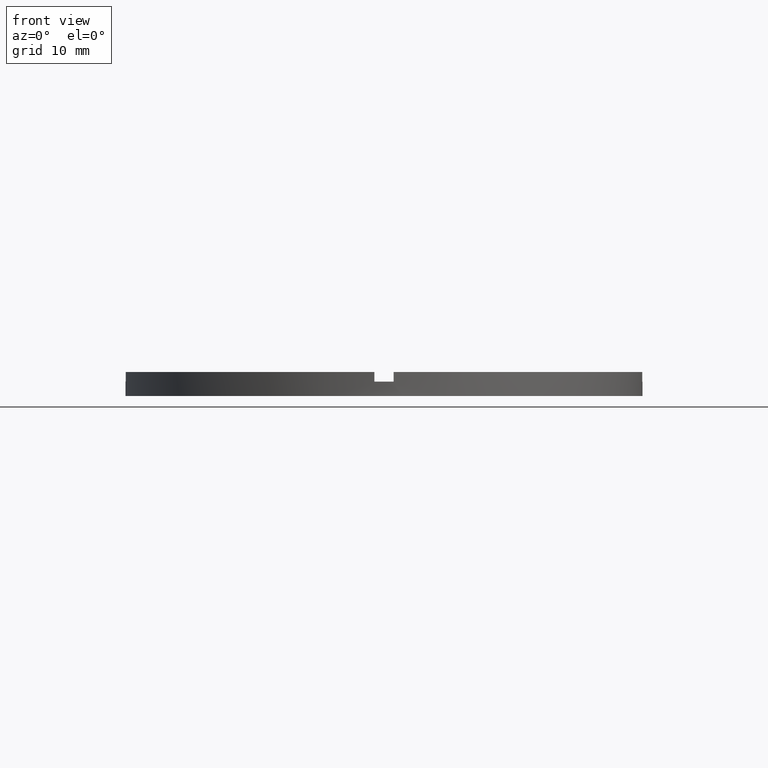
[diagram: clean part render]
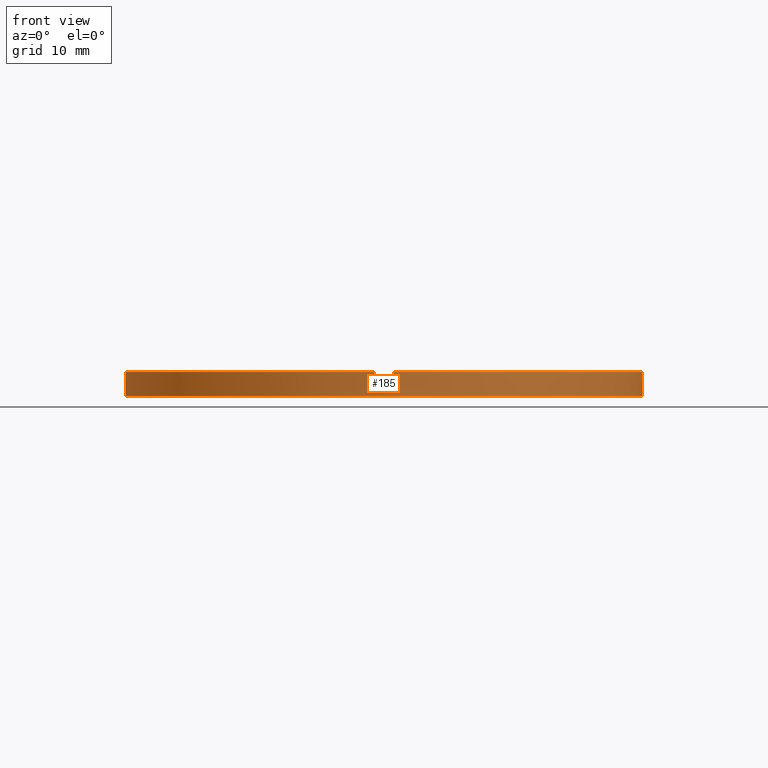
[diagram: same view with one face highlighted and labeled with its STEP entity id]
A machine part, front view. The second image highlights one B-rep face of the part: STEP entity #185.
In plain terms, the highlighted cylindrical surface (partial cylindrical patch) has radius 27 mm, axis along (-0, -0, -1).
Its self-contained STEP definition (entity closure, byte-faithful):
#3 = VERTEX_POINT ( 'NONE', #76 ) ;
#12 = CARTESIAN_POINT ( 'NONE',  ( -27.00000000000000000, 0.000000000000000000, 2.500000000000000000 ) ) ;
#16 = CARTESIAN_POINT ( 'NONE',  ( -1.000000000000160094, -26.98147512646407620, 2.500000000000000000 ) ) ;
#19 = ORIENTED_EDGE ( 'NONE', *, *, #266, .F. ) ;
#22 = VERTEX_POINT ( 'NONE', #744 ) ;
#27 = ORIENTED_EDGE ( 'NONE', *, *, #388, .F. ) ;
#41 = EDGE_CURVE ( 'NONE', #81, #520, #416, .T. ) ;
#55 = DIRECTION ( 'NONE',  ( -0.000000000000000000, -0.000000000000000000, -1.000000000000000000 ) ) ;
#61 = DIRECTION ( 'NONE',  ( 0.000000000000000000, 0.000000000000000000, 1.000000000000000000 ) ) ;
#66 = DIRECTION ( 'NONE',  ( -0.000000000000000000, 0.000000000000000000, 1.000000000000000000 ) ) ;
#76 = CARTESIAN_POINT ( 'NONE',  ( 27.00000000000000000, 3.306546357697853733E-15, 0.000000000000000000 ) ) ;
#81 = VERTEX_POINT ( 'NONE', #241 ) ;
#102 = DIRECTION ( 'NONE',  ( 1.000000000000000000, 0.000000000000000000, 0.000000000000000000 ) ) ;
#127 = CIRCLE ( 'NONE', #165, 27.00000000000000000 ) ;
#133 = CYLINDRICAL_SURFACE ( 'NONE', #310, 27.00000000000000000 ) ;
#165 = AXIS2_PLACEMENT_3D ( 'NONE', #590, #320, #711 ) ;
#173 = LINE ( 'NONE', #576, #443 ) ;
#176 = LINE ( 'NONE', #12, #697 ) ;
#178 = VECTOR ( 'NONE', #642, 1000.000000000000000 ) ;
#179 = CARTESIAN_POINT ( 'NONE',  ( 27.00000000000000000, 3.306546357697853733E-15, 1.500000000000000000 ) ) ;
#185 = ADVANCED_FACE ( 'NONE', ( #658 ), #133, .T. ) ;
#187 = CIRCLE ( 'NONE', #645, 27.00000000000000000 ) ;
#191 = LINE ( 'NONE', #600, #178 ) ;
#193 = CARTESIAN_POINT ( 'NONE',  ( 0.9999999999998400169, -26.98147512646408686, 2.500000000000000000 ) ) ;
#194 = CIRCLE ( 'NONE', #386, 27.00000000000000000 ) ;
#202 = VECTOR ( 'NONE', #272, 1000.000000000000000 ) ;
#216 = LINE ( 'NONE', #16, #202 ) ;
#237 = VERTEX_POINT ( 'NONE', #326 ) ;
#241 = CARTESIAN_POINT ( 'NONE',  ( 26.98147512646407620, -1.000000000000157208, 1.500000000000000000 ) ) ;
#250 = VERTEX_POINT ( 'NONE', #407 ) ;
#252 = VERTEX_POINT ( 'NONE', #506 ) ;
#254 = EDGE_CURVE ( 'NONE', #515, #22, #410, .T. ) ;
#259 = DIRECTION ( 'NONE',  ( 1.000000000000000000, 0.000000000000000000, 0.000000000000000000 ) ) ;
#266 = EDGE_CURVE ( 'NONE', #763, #520, #662, .T. ) ;
#268 = CARTESIAN_POINT ( 'NONE',  ( 26.98147512646407620, -1.000000000000157208, 2.500000000000000000 ) ) ;
#272 = DIRECTION ( 'NONE',  ( 0.000000000000000000, 0.000000000000000000, 1.000000000000000000 ) ) ;
#278 = DIRECTION ( 'NONE',  ( -0.000000000000000000, -0.000000000000000000, -1.000000000000000000 ) ) ;
#279 = VERTEX_POINT ( 'NONE', #596 ) ;
#286 = CARTESIAN_POINT ( 'NONE',  ( 0.000000000000000000, 0.000000000000000000, 1.500000000000000000 ) ) ;
#290 = EDGE_CURVE ( 'NONE', #250, #3, #127, .T. ) ;
#309 = ORIENTED_EDGE ( 'NONE', *, *, #724, .F. ) ;
#310 = AXIS2_PLACEMENT_3D ( 'NONE', #555, #55, #597 ) ;
#320 = DIRECTION ( 'NONE',  ( 0.000000000000000000, 0.000000000000000000, 1.000000000000000000 ) ) ;
#326 = CARTESIAN_POINT ( 'NONE',  ( -26.98147512646407975, -1.000000000000026645, 2.500000000000000000 ) ) ;
#335 = CARTESIAN_POINT ( 'NONE',  ( 0.000000000000000000, 0.000000000000000000, 2.500000000000000000 ) ) ;
#366 = AXIS2_PLACEMENT_3D ( 'NONE', #498, #414, #720 ) ;
#373 = CARTESIAN_POINT ( 'NONE',  ( 0.000000000000000000, 0.000000000000000000, 1.500000000000000000 ) ) ;
#383 = EDGE_CURVE ( 'NONE', #515, #279, #216, .T. ) ;
#385 = AXIS2_PLACEMENT_3D ( 'NONE', #286, #621, #442 ) ;
#386 = AXIS2_PLACEMENT_3D ( 'NONE', #335, #648, #746 ) ;
#387 = DIRECTION ( 'NONE',  ( -0.000000000000000000, -0.000000000000000000, -1.000000000000000000 ) ) ;
#388 = EDGE_CURVE ( 'NONE', #237, #279, #194, .T. ) ;
#399 = CARTESIAN_POINT ( 'NONE',  ( -1.000000000000160094, -26.98147512646407620, 1.500000000000000000 ) ) ;
#407 = CARTESIAN_POINT ( 'NONE',  ( -27.00000000000000000, 0.000000000000000000, 0.000000000000000000 ) ) ;
#410 = CIRCLE ( 'NONE', #603, 27.00000000000000000 ) ;
#414 = DIRECTION ( 'NONE',  ( 0.000000000000000000, 0.000000000000000000, 1.000000000000000000 ) ) ;
#416 = LINE ( 'NONE', #268, #687 ) ;
#440 = EDGE_CURVE ( 'NONE', #487, #3, #191, .T. ) ;
#442 = DIRECTION ( 'NONE',  ( 1.000000000000000000, 0.000000000000000000, 0.000000000000000000 ) ) ;
#443 = VECTOR ( 'NONE', #387, 1000.000000000000000 ) ;
#449 = VECTOR ( 'NONE', #726, 1000.000000000000000 ) ;
#480 = ORIENTED_EDGE ( 'NONE', *, *, #383, .T. ) ;
#487 = VERTEX_POINT ( 'NONE', #179 ) ;
#494 = ORIENTED_EDGE ( 'NONE', *, *, #768, .T. ) ;
#498 = CARTESIAN_POINT ( 'NONE',  ( 0.000000000000000000, 0.000000000000000000, 2.500000000000000000 ) ) ;
#506 = CARTESIAN_POINT ( 'NONE',  ( -27.00000000000000000, 0.000000000000000000, 1.500000000000000000 ) ) ;
#515 = VERTEX_POINT ( 'NONE', #399 ) ;
#520 = VERTEX_POINT ( 'NONE', #608 ) ;
#524 = CARTESIAN_POINT ( 'NONE',  ( -26.98147512646407975, -1.000000000000026645, 2.500000000000000000 ) ) ;
#525 = EDGE_CURVE ( 'NONE', #81, #487, #187, .T. ) ;
#533 = ORIENTED_EDGE ( 'NONE', *, *, #290, .T. ) ;
#535 = ORIENTED_EDGE ( 'NONE', *, *, #525, .F. ) ;
#545 = EDGE_LOOP ( 'NONE', ( #764, #535, #759, #19, #685, #677, #480, #27, #762, #309, #494, #533 ) ) ;
#555 = CARTESIAN_POINT ( 'NONE',  ( 0.000000000000000000, 0.000000000000000000, 2.500000000000000000 ) ) ;
#558 = VERTEX_POINT ( 'NONE', #593 ) ;
#576 = CARTESIAN_POINT ( 'NONE',  ( 0.9999999999998400169, -26.98147512646408686, 2.500000000000000000 ) ) ;
#590 = CARTESIAN_POINT ( 'NONE',  ( 0.000000000000000000, 0.000000000000000000, 0.000000000000000000 ) ) ;
#593 = CARTESIAN_POINT ( 'NONE',  ( -26.98147512646407975, -1.000000000000026645, 1.500000000000000000 ) ) ;
#595 = DIRECTION ( 'NONE',  ( 0.000000000000000000, 0.000000000000000000, 1.000000000000000000 ) ) ;
#596 = CARTESIAN_POINT ( 'NONE',  ( -1.000000000000160094, -26.98147512646407620, 2.500000000000000000 ) ) ;
#597 = DIRECTION ( 'NONE',  ( -1.000000000000000000, 0.000000000000000000, 0.000000000000000000 ) ) ;
#600 = CARTESIAN_POINT ( 'NONE',  ( 27.00000000000000000, 3.306546357697853733E-15, 2.500000000000000000 ) ) ;
#603 = AXIS2_PLACEMENT_3D ( 'NONE', #373, #66, #259 ) ;
#608 = CARTESIAN_POINT ( 'NONE',  ( 26.98147512646407620, -1.000000000000157208, 2.500000000000000000 ) ) ;
#621 = DIRECTION ( 'NONE',  ( 0.000000000000000000, 0.000000000000000000, 1.000000000000000000 ) ) ;
#642 = DIRECTION ( 'NONE',  ( -0.000000000000000000, -0.000000000000000000, -1.000000000000000000 ) ) ;
#645 = AXIS2_PLACEMENT_3D ( 'NONE', #743, #61, #102 ) ;
#648 = DIRECTION ( 'NONE',  ( 0.000000000000000000, 0.000000000000000000, 1.000000000000000000 ) ) ;
#658 = FACE_OUTER_BOUND ( 'NONE', #545, .T. ) ;
#662 = CIRCLE ( 'NONE', #366, 27.00000000000000000 ) ;
#677 = ORIENTED_EDGE ( 'NONE', *, *, #254, .F. ) ;
#685 = ORIENTED_EDGE ( 'NONE', *, *, #737, .T. ) ;
#687 = VECTOR ( 'NONE', #595, 1000.000000000000000 ) ;
#697 = VECTOR ( 'NONE', #278, 1000.000000000000000 ) ;
#699 = LINE ( 'NONE', #524, #449 ) ;
#711 = DIRECTION ( 'NONE',  ( 1.000000000000000000, 0.000000000000000000, 0.000000000000000000 ) ) ;
#720 = DIRECTION ( 'NONE',  ( 1.000000000000000000, 0.000000000000000000, 0.000000000000000000 ) ) ;
#723 = CIRCLE ( 'NONE', #385, 27.00000000000000000 ) ;
#724 = EDGE_CURVE ( 'NONE', #252, #558, #723, .T. ) ;
#726 = DIRECTION ( 'NONE',  ( -0.000000000000000000, -0.000000000000000000, -1.000000000000000000 ) ) ;
#737 = EDGE_CURVE ( 'NONE', #763, #22, #173, .T. ) ;
#743 = CARTESIAN_POINT ( 'NONE',  ( 0.000000000000000000, 0.000000000000000000, 1.500000000000000000 ) ) ;
#744 = CARTESIAN_POINT ( 'NONE',  ( 0.9999999999998400169, -26.98147512646408686, 1.500000000000000000 ) ) ;
#746 = DIRECTION ( 'NONE',  ( 1.000000000000000000, 0.000000000000000000, 0.000000000000000000 ) ) ;
#759 = ORIENTED_EDGE ( 'NONE', *, *, #41, .T. ) ;
#762 = ORIENTED_EDGE ( 'NONE', *, *, #773, .T. ) ;
#763 = VERTEX_POINT ( 'NONE', #193 ) ;
#764 = ORIENTED_EDGE ( 'NONE', *, *, #440, .F. ) ;
#768 = EDGE_CURVE ( 'NONE', #252, #250, #176, .T. ) ;
#773 = EDGE_CURVE ( 'NONE', #237, #558, #699, .T. ) ;